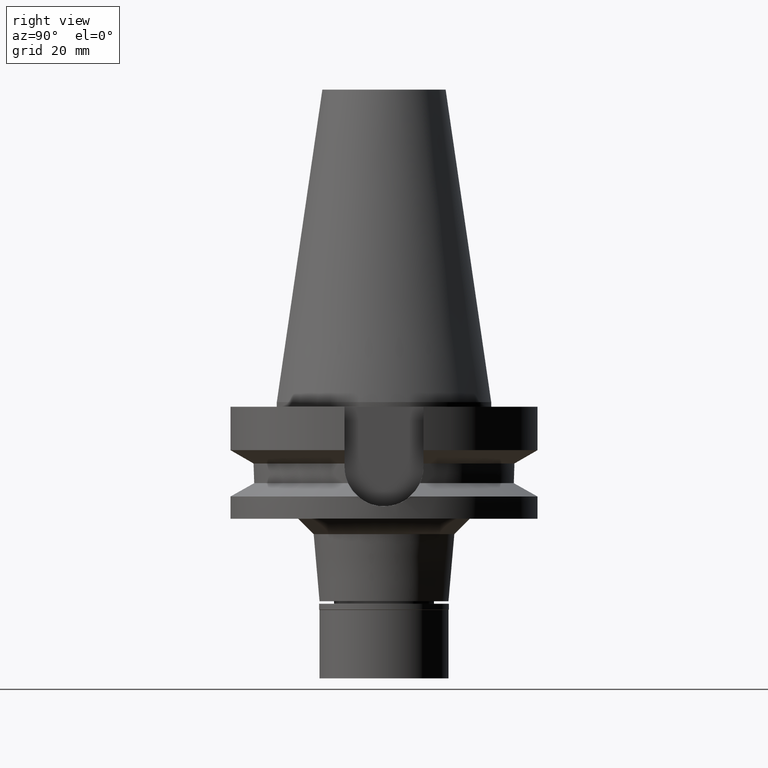
[diagram: clean part render]
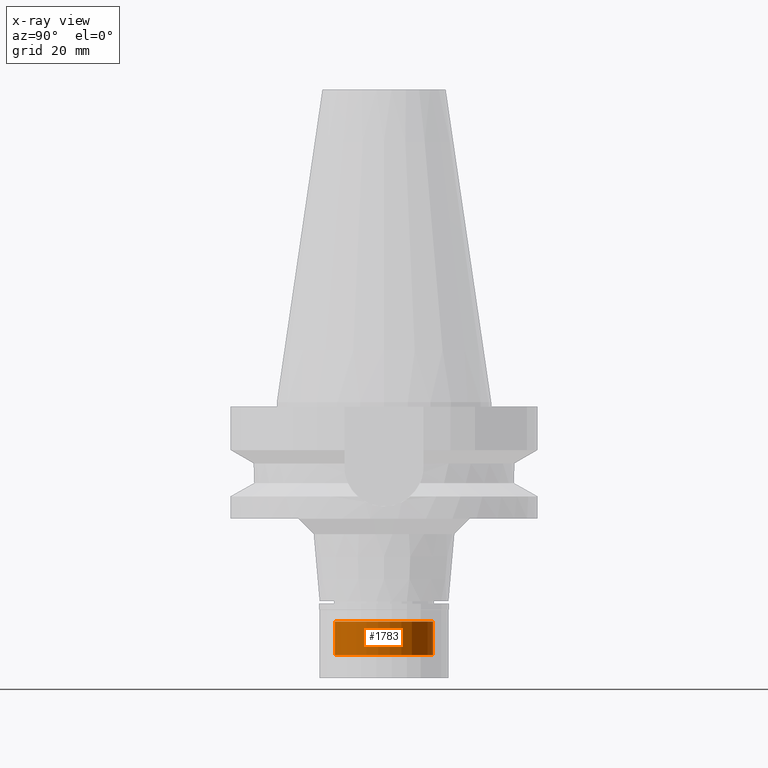
[diagram: x-ray — body ghosted, one internal face saturated and labeled with its STEP entity id]
A machine part, right view, then the same camera in x-ray: the body is ghosted and one INTERNAL B-rep face — a face not visible from any outside direction — is saturated and labeled: STEP entity #1783.
In plain terms, the highlighted cylindrical surface (partial cylindrical patch) has radius 16 mm, axis along (0, 0, -1).
Its self-contained STEP definition (entity closure, byte-faithful):
#71 = CARTESIAN_POINT ( 'NONE',  ( 0.0000000000000000000, 16.00000000000000000, -82.50000000000000000 ) ) ;
#78 = DIRECTION ( 'NONE',  ( 0.0000000000000000000, 0.0000000000000000000, 1.000000000000000000 ) ) ;
#233 = VERTEX_POINT ( 'NONE', #1523 ) ;
#309 = EDGE_CURVE ( 'NONE', #2130, #233, #464, .T. ) ;
#332 = DIRECTION ( 'NONE',  ( 0.0000000000000000000, 0.0000000000000000000, -1.000000000000000000 ) ) ;
#345 = VECTOR ( 'NONE', #332, 1000.000000000000000 ) ;
#416 = EDGE_CURVE ( 'NONE', #2450, #2130, #1107, .T. ) ;
#464 = LINE ( 'NONE', #935, #939 ) ;
#653 = ORIENTED_EDGE ( 'NONE', *, *, #2833, .T. ) ;
#691 = CIRCLE ( 'NONE', #2974, 16.00000000000000000 ) ;
#935 = CARTESIAN_POINT ( 'NONE',  ( 0.0000000000000000000, -16.00000000000000000, -71.50000000000000000 ) ) ;
#939 = VECTOR ( 'NONE', #2891, 1000.000000000000000 ) ;
#1098 = CARTESIAN_POINT ( 'NONE',  ( 0.0000000000000000000, 16.00000000000000000, -71.50000000000000000 ) ) ;
#1107 = CIRCLE ( 'NONE', #2647, 16.00000000000000000 ) ;
#1219 = DIRECTION ( 'NONE',  ( 0.0000000000000000000, 1.000000000000000000, 0.0000000000000000000 ) ) ;
#1234 = CARTESIAN_POINT ( 'NONE',  ( 0.0000000000000000000, 2.584188443221000028E-14, -71.50000000000000000 ) ) ;
#1418 = ORIENTED_EDGE ( 'NONE', *, *, #2240, .F. ) ;
#1519 = DIRECTION ( 'NONE',  ( 0.0000000000000000000, -1.000000000000000000, 0.0000000000000000000 ) ) ;
#1523 = CARTESIAN_POINT ( 'NONE',  ( 0.0000000000000000000, -16.00000000000000000, -82.50000000000000000 ) ) ;
#1628 = CYLINDRICAL_SURFACE ( 'NONE', #2716, 16.00000000000000000 ) ;
#1726 = ORIENTED_EDGE ( 'NONE', *, *, #309, .T. ) ;
#1783 = ADVANCED_FACE ( 'NONE', ( #3102 ), #1628, .T. ) ;
#1901 = DIRECTION ( 'NONE',  ( 0.0000000000000000000, -1.000000000000000000, 0.0000000000000000000 ) ) ;
#1957 = DIRECTION ( 'NONE',  ( 0.0000000000000000000, 0.0000000000000000000, -1.000000000000000000 ) ) ;
#2011 = CARTESIAN_POINT ( 'NONE',  ( 0.0000000000000000000, 2.584188443221000028E-14, -82.50000000000000000 ) ) ;
#2130 = VERTEX_POINT ( 'NONE', #2997 ) ;
#2132 = EDGE_LOOP ( 'NONE', ( #2933, #1726, #653, #1418 ) ) ;
#2240 = EDGE_CURVE ( 'NONE', #2450, #2351, #2525, .T. ) ;
#2351 = VERTEX_POINT ( 'NONE', #71 ) ;
#2358 = DIRECTION ( 'NONE',  ( 0.0000000000000000000, 0.0000000000000000000, -1.000000000000000000 ) ) ;
#2450 = VERTEX_POINT ( 'NONE', #2500 ) ;
#2500 = CARTESIAN_POINT ( 'NONE',  ( 0.0000000000000000000, 16.00000000000000000, -71.50000000000000000 ) ) ;
#2525 = LINE ( 'NONE', #1098, #345 ) ;
#2584 = CARTESIAN_POINT ( 'NONE',  ( 0.0000000000000000000, 2.584188443221000028E-14, 111.0150000000000006 ) ) ;
#2647 = AXIS2_PLACEMENT_3D ( 'NONE', #1234, #1957, #1219 ) ;
#2716 = AXIS2_PLACEMENT_3D ( 'NONE', #2584, #2358, #1901 ) ;
#2833 = EDGE_CURVE ( 'NONE', #233, #2351, #691, .T. ) ;
#2891 = DIRECTION ( 'NONE',  ( 0.0000000000000000000, 0.0000000000000000000, -1.000000000000000000 ) ) ;
#2933 = ORIENTED_EDGE ( 'NONE', *, *, #416, .T. ) ;
#2974 = AXIS2_PLACEMENT_3D ( 'NONE', #2011, #78, #1519 ) ;
#2997 = CARTESIAN_POINT ( 'NONE',  ( 0.0000000000000000000, -16.00000000000000000, -71.50000000000000000 ) ) ;
#3102 = FACE_OUTER_BOUND ( 'NONE', #2132, .T. ) ;